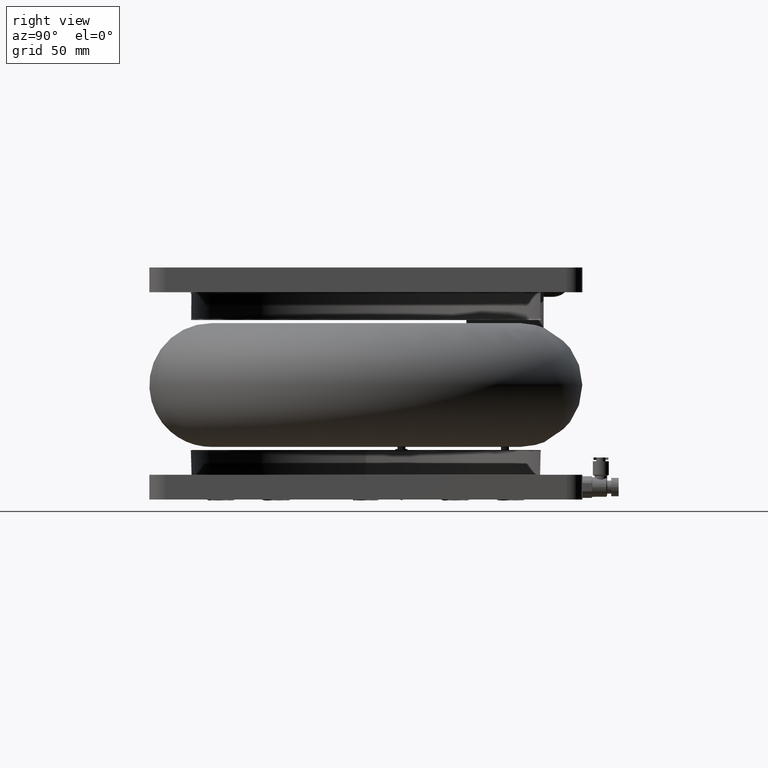
[diagram: clean part render]
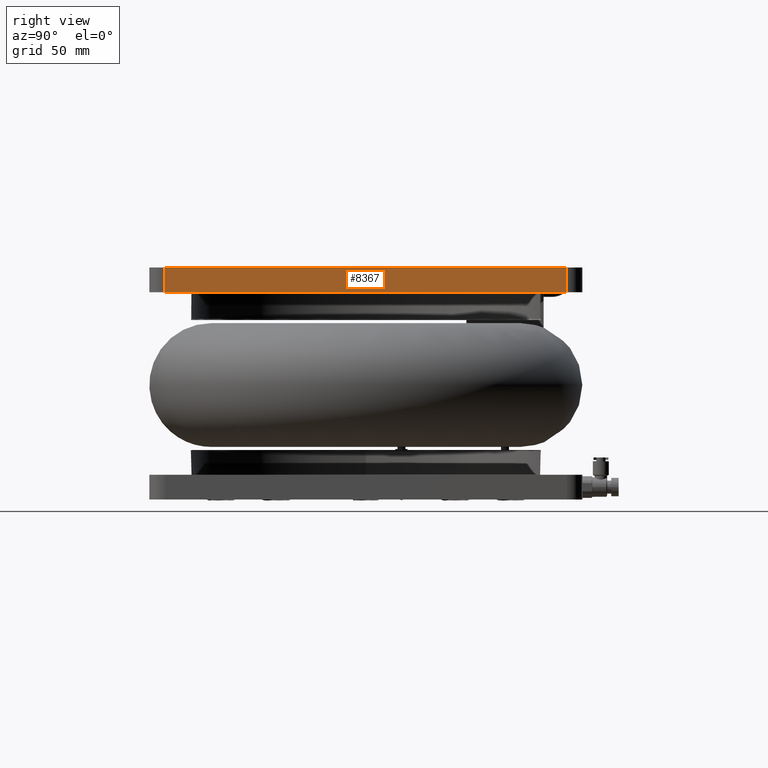
[diagram: same view with one face highlighted and labeled with its STEP entity id]
A machine part, right view. The second image highlights one B-rep face of the part: STEP entity #8367.
In plain terms, the highlighted planar face has unit normal (-1, 0, 0).
Its self-contained STEP definition (entity closure, byte-faithful):
#2120 = DIRECTION ( 'NONE',  ( 0.000000000000000000, 1.000000000000000000, -0.000000000000000000 ) ) ;
#2311 = LINE ( 'NONE', #38627, #22978 ) ;
#3665 = LINE ( 'NONE', #39023, #3903 ) ;
#3903 = VECTOR ( 'NONE', #6040, 1000.000000000000000 ) ;
#4173 = DIRECTION ( 'NONE',  ( -1.000000000000000000, 0.000000000000000000, 0.000000000000000000 ) ) ;
#5523 = EDGE_CURVE ( 'NONE', #10326, #14114, #11787, .T. ) ;
#5629 = EDGE_CURVE ( 'NONE', #19214, #19097, #3665, .T. ) ;
#6040 = DIRECTION ( 'NONE',  ( -0.000000000000000000, -0.000000000000000000, -1.000000000000000000 ) ) ;
#8367 = ADVANCED_FACE ( 'NONE', ( #12896 ), #24944, .F. ) ;
#8408 = VECTOR ( 'NONE', #35643, 1000.000000000000000 ) ;
#10100 = CARTESIAN_POINT ( 'NONE',  ( 269.3094785136825635, -165.5458643906854661, 239.0000000000000568 ) ) ;
#10326 = VERTEX_POINT ( 'NONE', #27437 ) ;
#11787 = LINE ( 'NONE', #23850, #23496 ) ;
#12896 = FACE_OUTER_BOUND ( 'NONE', #17764, .T. ) ;
#14012 = AXIS2_PLACEMENT_3D ( 'NONE', #10100, #4173, #27693 ) ;
#14114 = VERTEX_POINT ( 'NONE', #30682 ) ;
#14719 = LINE ( 'NONE', #34712, #8408 ) ;
#14813 = ORIENTED_EDGE ( 'NONE', *, *, #5523, .F. ) ;
#17764 = EDGE_LOOP ( 'NONE', ( #37986, #22725, #14813, #28233 ) ) ;
#19097 = VERTEX_POINT ( 'NONE', #31124 ) ;
#19214 = VERTEX_POINT ( 'NONE', #37622 ) ;
#21048 = EDGE_CURVE ( 'NONE', #19097, #10326, #14719, .T. ) ;
#22725 = ORIENTED_EDGE ( 'NONE', *, *, #25250, .F. ) ;
#22978 = VECTOR ( 'NONE', #2120, 1000.000000000000000 ) ;
#23496 = VECTOR ( 'NONE', #35868, 1000.000000000000000 ) ;
#23850 = CARTESIAN_POINT ( 'NONE',  ( 269.3094785136825635, -155.5458643906854661, 239.0000000000000568 ) ) ;
#24944 = PLANE ( 'NONE',  #14012 ) ;
#25250 = EDGE_CURVE ( 'NONE', #14114, #19214, #2311, .T. ) ;
#27437 = CARTESIAN_POINT ( 'NONE',  ( 269.3094785136825635, -155.5458643906854661, 223.0000000000000000 ) ) ;
#27693 = DIRECTION ( 'NONE',  ( 0.000000000000000000, 0.000000000000000000, 1.000000000000000000 ) ) ;
#28233 = ORIENTED_EDGE ( 'NONE', *, *, #21048, .F. ) ;
#30682 = CARTESIAN_POINT ( 'NONE',  ( 269.3094785136825635, -155.5458643906854661, 239.0000000000000568 ) ) ;
#31124 = CARTESIAN_POINT ( 'NONE',  ( 269.3094785136825635, 104.4541356093145481, 223.0000000000000000 ) ) ;
#34712 = CARTESIAN_POINT ( 'NONE',  ( 269.3094785136825635, -25.54586439068544479, 223.0000000000000000 ) ) ;
#35643 = DIRECTION ( 'NONE',  ( -0.000000000000000000, -1.000000000000000000, -0.000000000000000000 ) ) ;
#35868 = DIRECTION ( 'NONE',  ( -0.000000000000000000, -0.000000000000000000, 1.000000000000000000 ) ) ;
#37622 = CARTESIAN_POINT ( 'NONE',  ( 269.3094785136825635, 104.4541356093145481, 239.0000000000000568 ) ) ;
#37986 = ORIENTED_EDGE ( 'NONE', *, *, #5629, .F. ) ;
#38627 = CARTESIAN_POINT ( 'NONE',  ( 269.3094785136825635, -165.5458643906854661, 239.0000000000000568 ) ) ;
#39023 = CARTESIAN_POINT ( 'NONE',  ( 269.3094785136825635, 104.4541356093145481, 239.0000000000000568 ) ) ;